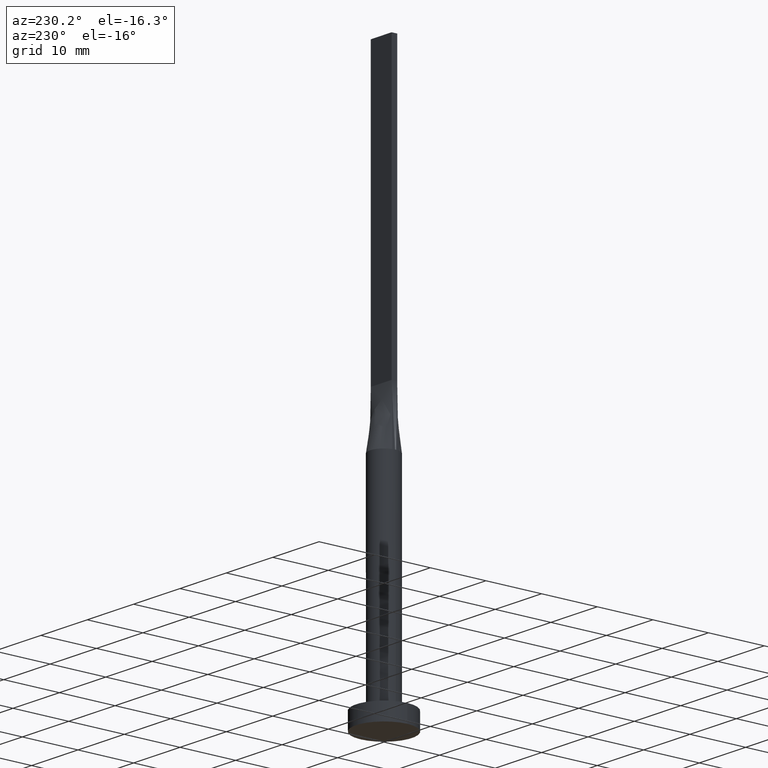
[diagram: clean part render]
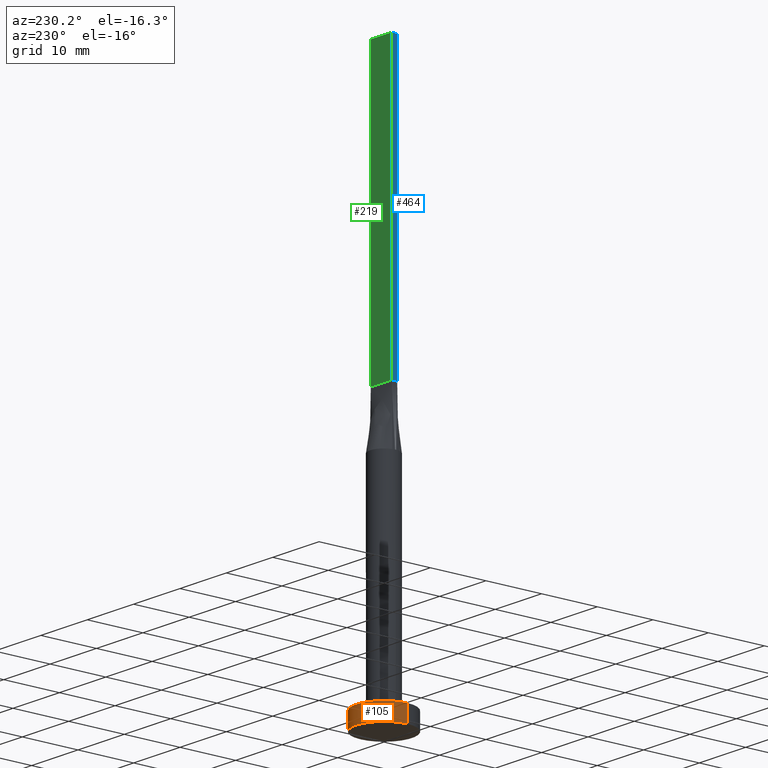
[diagram: same view with three faces highlighted in distinct colors, each labeled with its STEP entity id]
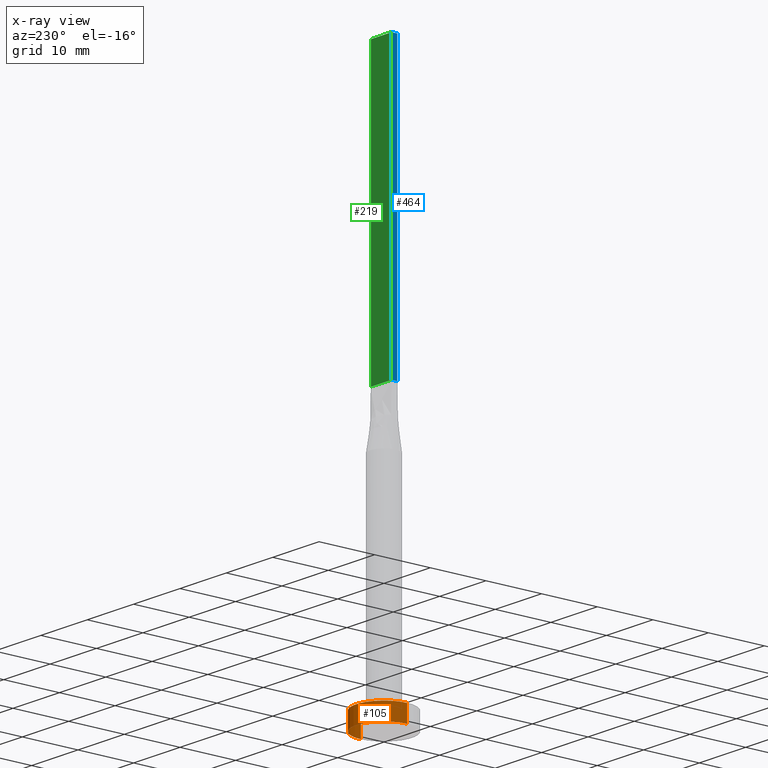
[diagram: x-ray of the same camera — body ghosted, the three highlighted faces saturated]
A machine part, auxiliary view with three faces highlighted in distinct colors.
The next image is the same camera in x-ray (body ghosted, the three faces saturated) — at least one of them is partly hidden behind the body in this view.
Their STEP definitions:

[orange] entity #105 — the highlighted cylindrical surface (edge-blend (fillet) strip) has radius 5 mm, axis along (-0, -0, -1).
#3 = DIRECTION ( 'NONE',  ( 1.000000000000000000, 0.000000000000000000, 0.000000000000000000 ) ) ;
#7 = DIRECTION ( 'NONE',  ( -0.000000000000000000, -0.000000000000000000, -1.000000000000000000 ) ) ;
#13 = EDGE_LOOP ( 'NONE', ( #78, #204, #167, #504 ) ) ;
#39 = EDGE_CURVE ( 'NONE', #115, #384, #317, .T. ) ;
#61 = AXIS2_PLACEMENT_3D ( 'NONE', #151, #462, #3 ) ;
#78 = ORIENTED_EDGE ( 'NONE', *, *, #473, .F. ) ;
#87 = CIRCLE ( 'NONE', #236, 5.000000000000000000 ) ;
#91 = LINE ( 'NONE', #443, #162 ) ;
#105 = ADVANCED_FACE ( 'NONE', ( #157 ), #546, .T. ) ;
#115 = VERTEX_POINT ( 'NONE', #322 ) ;
#143 = CARTESIAN_POINT ( 'NONE',  ( -5.000000000000000000, 0.000000000000000000, 0.000000000000000000 ) ) ;
#148 = DIRECTION ( 'NONE',  ( -0.000000000000000000, -0.000000000000000000, -1.000000000000000000 ) ) ;
#151 = CARTESIAN_POINT ( 'NONE',  ( 0.000000000000000000, 0.000000000000000000, 0.000000000000000000 ) ) ;
#155 = CARTESIAN_POINT ( 'NONE',  ( 0.000000000000000000, 0.000000000000000000, 3.000000000000000000 ) ) ;
#157 = FACE_OUTER_BOUND ( 'NONE', #13, .T. ) ;
#162 = VECTOR ( 'NONE', #148, 1000.000000000000000 ) ;
#167 = ORIENTED_EDGE ( 'NONE', *, *, #39, .T. ) ;
#204 = ORIENTED_EDGE ( 'NONE', *, *, #424, .T. ) ;
#214 = EDGE_CURVE ( 'NONE', #547, #384, #368, .T. ) ;
#228 = CARTESIAN_POINT ( 'NONE',  ( -5.000000000000000000, 0.000000000000000000, 3.000000000000000000 ) ) ;
#236 = AXIS2_PLACEMENT_3D ( 'NONE', #282, #238, #476 ) ;
#238 = DIRECTION ( 'NONE',  ( 0.000000000000000000, 0.000000000000000000, 1.000000000000000000 ) ) ;
#282 = CARTESIAN_POINT ( 'NONE',  ( 0.000000000000000000, 0.000000000000000000, 3.000000000000000000 ) ) ;
#283 = DIRECTION ( 'NONE',  ( -1.000000000000000000, 0.000000000000000000, 0.000000000000000000 ) ) ;
#317 = CIRCLE ( 'NONE', #61, 5.000000000000000000 ) ;
#322 = CARTESIAN_POINT ( 'NONE',  ( 5.000000000000000000, 6.123233995736766282E-16, 0.000000000000000000 ) ) ;
#330 = DIRECTION ( 'NONE',  ( -0.000000000000000000, -0.000000000000000000, -1.000000000000000000 ) ) ;
#368 = LINE ( 'NONE', #228, #400 ) ;
#384 = VERTEX_POINT ( 'NONE', #143 ) ;
#400 = VECTOR ( 'NONE', #7, 1000.000000000000000 ) ;
#409 = CARTESIAN_POINT ( 'NONE',  ( -5.000000000000000000, 0.000000000000000000, 3.000000000000000000 ) ) ;
#414 = VERTEX_POINT ( 'NONE', #497 ) ;
#424 = EDGE_CURVE ( 'NONE', #414, #115, #91, .T. ) ;
#435 = AXIS2_PLACEMENT_3D ( 'NONE', #155, #330, #283 ) ;
#443 = CARTESIAN_POINT ( 'NONE',  ( 5.000000000000000000, 6.123233995736766282E-16, 3.000000000000000000 ) ) ;
#462 = DIRECTION ( 'NONE',  ( 0.000000000000000000, 0.000000000000000000, 1.000000000000000000 ) ) ;
#473 = EDGE_CURVE ( 'NONE', #414, #547, #87, .T. ) ;
#476 = DIRECTION ( 'NONE',  ( 1.000000000000000000, 0.000000000000000000, 0.000000000000000000 ) ) ;
#497 = CARTESIAN_POINT ( 'NONE',  ( 5.000000000000000000, 6.123233995736766282E-16, 3.000000000000000000 ) ) ;
#504 = ORIENTED_EDGE ( 'NONE', *, *, #214, .F. ) ;
#546 = CYLINDRICAL_SURFACE ( 'NONE', #435, 5.000000000000000000 ) ;
#547 = VERTEX_POINT ( 'NONE', #409 ) ;

[blue] entity #464 — the highlighted planar face has unit normal (1, -0, 0).
#6 = EDGE_CURVE ( 'NONE', #551, #323, #314, .T. ) ;
#18 = VERTEX_POINT ( 'NONE', #171 ) ;
#38 = CARTESIAN_POINT ( 'NONE',  ( -2.249999999999999556, 0.5000000000000002220, 100.0000000000000000 ) ) ;
#93 = LINE ( 'NONE', #416, #111 ) ;
#106 = ORIENTED_EDGE ( 'NONE', *, *, #364, .T. ) ;
#111 = VECTOR ( 'NONE', #376, 1000.000000000000000 ) ;
#138 = DIRECTION ( 'NONE',  ( -0.000000000000000000, -0.000000000000000000, -1.000000000000000000 ) ) ;
#160 = VECTOR ( 'NONE', #138, 1000.000000000000000 ) ;
#171 = CARTESIAN_POINT ( 'NONE',  ( -2.250000000000000000, -0.4999999999999994449, 50.00000000000000000 ) ) ;
#191 = VECTOR ( 'NONE', #341, 1000.000000000000000 ) ;
#222 = DIRECTION ( 'NONE',  ( 1.000000000000000000, -4.336808689942020201E-16, 0.000000000000000000 ) ) ;
#234 = EDGE_CURVE ( 'NONE', #323, #18, #405, .T. ) ;
#242 = VERTEX_POINT ( 'NONE', #401 ) ;
#269 = EDGE_CURVE ( 'NONE', #242, #18, #93, .T. ) ;
#271 = CARTESIAN_POINT ( 'NONE',  ( -2.249999999999999556, 0.5000000000000002220, 100.0000000000000000 ) ) ;
#301 = ORIENTED_EDGE ( 'NONE', *, *, #234, .F. ) ;
#312 = CARTESIAN_POINT ( 'NONE',  ( -2.249999999999999556, 0.5000000000000002220, 100.0000000000000000 ) ) ;
#314 = LINE ( 'NONE', #271, #347 ) ;
#323 = VERTEX_POINT ( 'NONE', #486 ) ;
#341 = DIRECTION ( 'NONE',  ( -0.000000000000000000, -0.000000000000000000, -1.000000000000000000 ) ) ;
#347 = VECTOR ( 'NONE', #447, 1000.000000000000000 ) ;
#362 = CARTESIAN_POINT ( 'NONE',  ( -2.250000000000000000, -0.4999999999999994449, 100.0000000000000000 ) ) ;
#364 = EDGE_CURVE ( 'NONE', #551, #242, #537, .T. ) ;
#376 = DIRECTION ( 'NONE',  ( -4.336808689942019708E-16, -1.000000000000000000, 0.000000000000000000 ) ) ;
#401 = CARTESIAN_POINT ( 'NONE',  ( -2.249999999999999556, 0.5000000000000002220, 50.00000000000000000 ) ) ;
#405 = LINE ( 'NONE', #362, #191 ) ;
#416 = CARTESIAN_POINT ( 'NONE',  ( -2.249999999999999556, 0.5000000000000002220, 50.00000000000000000 ) ) ;
#419 = CARTESIAN_POINT ( 'NONE',  ( -2.249999999999999556, 0.5000000000000002220, 100.0000000000000000 ) ) ;
#420 = ORIENTED_EDGE ( 'NONE', *, *, #269, .T. ) ;
#446 = FACE_OUTER_BOUND ( 'NONE', #571, .T. ) ;
#447 = DIRECTION ( 'NONE',  ( -4.336808689942019708E-16, -1.000000000000000000, 0.000000000000000000 ) ) ;
#449 = PLANE ( 'NONE',  #575 ) ;
#464 = ADVANCED_FACE ( 'NONE', ( #446 ), #449, .F. ) ;
#472 = ORIENTED_EDGE ( 'NONE', *, *, #6, .F. ) ;
#486 = CARTESIAN_POINT ( 'NONE',  ( -2.250000000000000000, -0.4999999999999994449, 100.0000000000000000 ) ) ;
#537 = LINE ( 'NONE', #312, #160 ) ;
#551 = VERTEX_POINT ( 'NONE', #419 ) ;
#571 = EDGE_LOOP ( 'NONE', ( #420, #301, #472, #106 ) ) ;
#575 = AXIS2_PLACEMENT_3D ( 'NONE', #38, #222, #580 ) ;
#580 = DIRECTION ( 'NONE',  ( 4.336808689942020201E-16, 1.000000000000000000, 0.000000000000000000 ) ) ;

[green] entity #219 — the highlighted planar face has unit normal (0, -1, 0).
#12 = CARTESIAN_POINT ( 'NONE',  ( -2.249999999999999556, 0.5000000000000002220, 50.00000000000000000 ) ) ;
#23 = EDGE_CURVE ( 'NONE', #383, #217, #360, .T. ) ;
#29 = ORIENTED_EDGE ( 'NONE', *, *, #34, .T. ) ;
#34 = EDGE_CURVE ( 'NONE', #217, #242, #560, .T. ) ;
#48 = DIRECTION ( 'NONE',  ( -1.000000000000000000, -0.000000000000000000, -0.000000000000000000 ) ) ;
#60 = FACE_OUTER_BOUND ( 'NONE', #510, .T. ) ;
#71 = EDGE_CURVE ( 'NONE', #383, #551, #286, .T. ) ;
#89 = VECTOR ( 'NONE', #452, 1000.000000000000000 ) ;
#103 = DIRECTION ( 'NONE',  ( 0.000000000000000000, -0.000000000000000000, -1.000000000000000000 ) ) ;
#138 = DIRECTION ( 'NONE',  ( -0.000000000000000000, -0.000000000000000000, -1.000000000000000000 ) ) ;
#160 = VECTOR ( 'NONE', #138, 1000.000000000000000 ) ;
#176 = CARTESIAN_POINT ( 'NONE',  ( 2.249999999999999556, 0.5000000000000002220, 100.0000000000000000 ) ) ;
#182 = CARTESIAN_POINT ( 'NONE',  ( 2.249999999999999556, 0.5000000000000002220, 100.0000000000000000 ) ) ;
#201 = CARTESIAN_POINT ( 'NONE',  ( 2.249999999999999556, 0.5000000000000002220, 100.0000000000000000 ) ) ;
#217 = VERTEX_POINT ( 'NONE', #499 ) ;
#219 = ADVANCED_FACE ( 'NONE', ( #60 ), #329, .F. ) ;
#220 = CARTESIAN_POINT ( 'NONE',  ( 2.249999999999999556, 0.5000000000000002220, 100.0000000000000000 ) ) ;
#240 = VECTOR ( 'NONE', #48, 1000.000000000000000 ) ;
#242 = VERTEX_POINT ( 'NONE', #401 ) ;
#256 = ORIENTED_EDGE ( 'NONE', *, *, #364, .F. ) ;
#286 = LINE ( 'NONE', #201, #425 ) ;
#312 = CARTESIAN_POINT ( 'NONE',  ( -2.249999999999999556, 0.5000000000000002220, 100.0000000000000000 ) ) ;
#329 = PLANE ( 'NONE',  #369 ) ;
#360 = LINE ( 'NONE', #220, #89 ) ;
#364 = EDGE_CURVE ( 'NONE', #551, #242, #537, .T. ) ;
#369 = AXIS2_PLACEMENT_3D ( 'NONE', #182, #461, #103 ) ;
#383 = VERTEX_POINT ( 'NONE', #176 ) ;
#401 = CARTESIAN_POINT ( 'NONE',  ( -2.249999999999999556, 0.5000000000000002220, 50.00000000000000000 ) ) ;
#419 = CARTESIAN_POINT ( 'NONE',  ( -2.249999999999999556, 0.5000000000000002220, 100.0000000000000000 ) ) ;
#425 = VECTOR ( 'NONE', #542, 1000.000000000000000 ) ;
#452 = DIRECTION ( 'NONE',  ( -0.000000000000000000, -0.000000000000000000, -1.000000000000000000 ) ) ;
#459 = ORIENTED_EDGE ( 'NONE', *, *, #23, .T. ) ;
#461 = DIRECTION ( 'NONE',  ( 0.000000000000000000, -1.000000000000000000, 0.000000000000000000 ) ) ;
#499 = CARTESIAN_POINT ( 'NONE',  ( 2.249999999999999556, 0.5000000000000002220, 50.00000000000000000 ) ) ;
#510 = EDGE_LOOP ( 'NONE', ( #29, #256, #562, #459 ) ) ;
#537 = LINE ( 'NONE', #312, #160 ) ;
#542 = DIRECTION ( 'NONE',  ( -1.000000000000000000, 0.000000000000000000, 0.000000000000000000 ) ) ;
#551 = VERTEX_POINT ( 'NONE', #419 ) ;
#560 = LINE ( 'NONE', #12, #240 ) ;
#562 = ORIENTED_EDGE ( 'NONE', *, *, #71, .F. ) ;